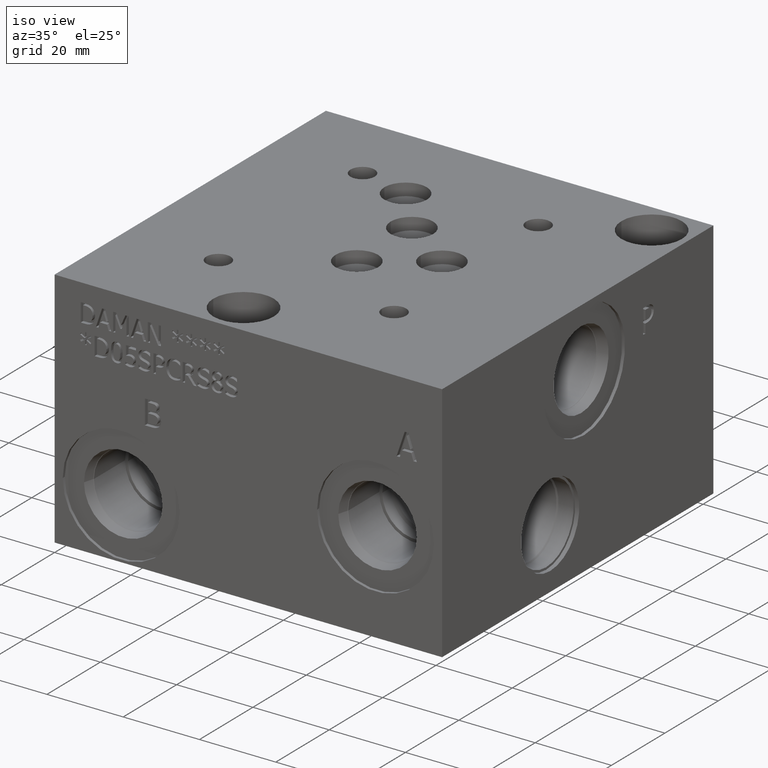
[diagram: clean part render]
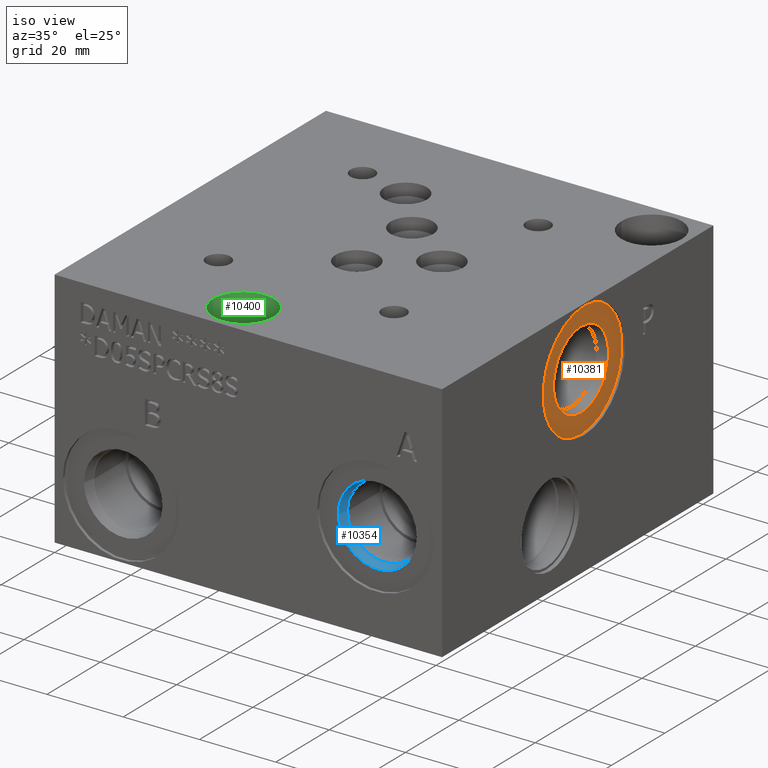
[diagram: same view with three faces highlighted in distinct colors, each labeled with its STEP entity id]
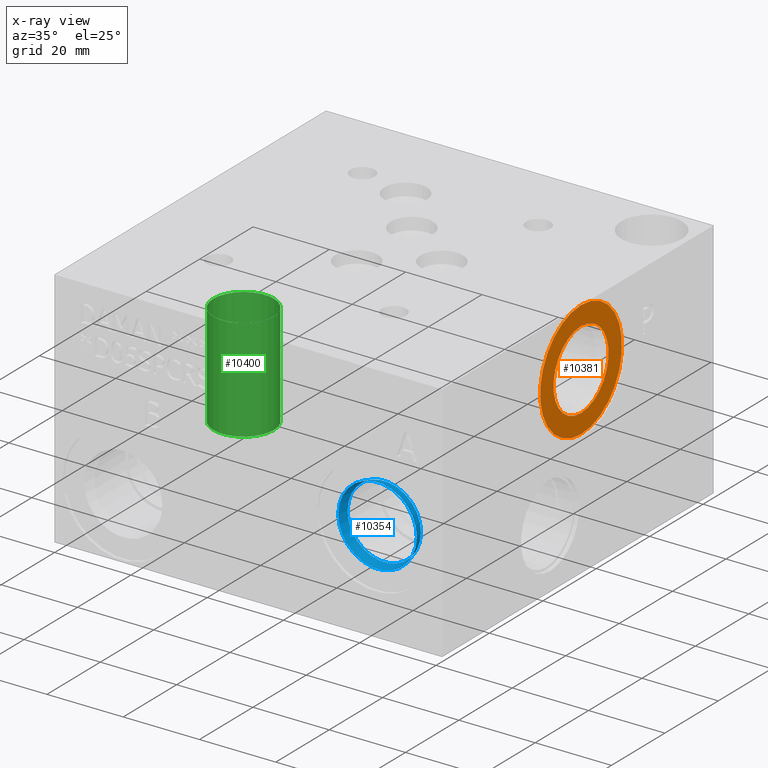
[diagram: x-ray of the same camera — body ghosted, the three highlighted faces saturated]
A machine part, iso view with three faces highlighted in distinct colors.
The next image is the same camera in x-ray (body ghosted, the three faces saturated) — at least one of them is partly hidden behind the body in this view.
Their STEP definitions:

[orange] entity #10381 — the highlighted planar face has unit normal (-1, 0, 0).
#200=CIRCLE('',#10872,15.3162);
#201=CIRCLE('',#10873,15.3162);
#202=CIRCLE('',#10875,10.2997);
#203=CIRCLE('',#10876,10.2997);
#334=FACE_BOUND('',#1718,.T.);
#634=PLANE('',#10874);
#1132=FACE_OUTER_BOUND('',#1717,.T.);
#1717=EDGE_LOOP('',(#9045,#9046));
#1718=EDGE_LOOP('',(#9047,#9048));
#4885=VERTEX_POINT('',#17860);
#4886=VERTEX_POINT('',#17862);
#4887=VERTEX_POINT('',#17866);
#4888=VERTEX_POINT('',#17867);
#6303=EDGE_CURVE('',#4885,#4886,#200,.T.);
#6304=EDGE_CURVE('',#4886,#4885,#201,.T.);
#6305=EDGE_CURVE('',#4887,#4888,#202,.T.);
#6306=EDGE_CURVE('',#4888,#4887,#203,.T.);
#9045=ORIENTED_EDGE('',*,*,#6304,.F.);
#9046=ORIENTED_EDGE('',*,*,#6303,.F.);
#9047=ORIENTED_EDGE('',*,*,#6305,.T.);
#9048=ORIENTED_EDGE('',*,*,#6306,.T.);
#10381=ADVANCED_FACE('',(#1132,#334),#634,.F.);
#10872=AXIS2_PLACEMENT_3D('',#17863,#12758,#12759);
#10873=AXIS2_PLACEMENT_3D('',#17864,#12760,#12761);
#10874=AXIS2_PLACEMENT_3D('',#17865,#12762,#12763);
#10875=AXIS2_PLACEMENT_3D('',#17868,#12764,#12765);
#10876=AXIS2_PLACEMENT_3D('',#17869,#12766,#12767);
#12758=DIRECTION('center_axis',(-1.,0.,0.));
#12759=DIRECTION('ref_axis',(0.,0.,1.));
#12760=DIRECTION('center_axis',(-1.,0.,0.));
#12761=DIRECTION('ref_axis',(0.,0.,1.));
#12762=DIRECTION('center_axis',(-1.,0.,0.));
#12763=DIRECTION('ref_axis',(0.,0.,1.));
#12764=DIRECTION('center_axis',(-1.,0.,0.));
#12765=DIRECTION('ref_axis',(0.,0.,1.));
#12766=DIRECTION('center_axis',(-1.,0.,0.));
#12767=DIRECTION('ref_axis',(0.,0.,1.));
#17860=CARTESIAN_POINT('',(100.8126,53.1622,62.9412));
#17862=CARTESIAN_POINT('',(100.8126,53.1622,32.3088));
#17863=CARTESIAN_POINT('Origin',(100.8126,53.1622,47.625));
#17864=CARTESIAN_POINT('Origin',(100.8126,53.1622,47.625));
#17865=CARTESIAN_POINT('Origin',(100.8126,53.1622,37.3253));
#17866=CARTESIAN_POINT('',(100.8126,53.1622,37.3253));
#17867=CARTESIAN_POINT('',(100.8126,53.1622,57.9247));
#17868=CARTESIAN_POINT('Origin',(100.8126,53.1622,47.625));
#17869=CARTESIAN_POINT('Origin',(100.8126,53.1622,47.625));

[blue] entity #10354 — the highlighted conical surface has half-angle 15.05 deg.
#21=CONICAL_SURFACE('',#10806,9.96315000000001,0.262678410964684);
#159=CIRCLE('',#10804,10.2997);
#160=CIRCLE('',#10805,10.2997);
#161=CIRCLE('',#10807,9.6266);
#162=CIRCLE('',#10808,9.6266);
#1105=FACE_OUTER_BOUND('',#1687,.T.);
#1687=EDGE_LOOP('',(#8911,#8912,#8913,#8914,#8915,#8916));
#2666=LINE('',#17731,#3605);
#3605=VECTOR('',#12604,9.96315000000001);
#4841=VERTEX_POINT('',#17725);
#4842=VERTEX_POINT('',#17726);
#4843=VERTEX_POINT('',#17730);
#4844=VERTEX_POINT('',#17732);
#6238=EDGE_CURVE('',#4841,#4842,#159,.T.);
#6239=EDGE_CURVE('',#4842,#4841,#160,.T.);
#6240=EDGE_CURVE('',#4842,#4843,#2666,.T.);
#6241=EDGE_CURVE('',#4843,#4844,#161,.T.);
#6242=EDGE_CURVE('',#4844,#4843,#162,.T.);
#8911=ORIENTED_EDGE('',*,*,#6238,.F.);
#8912=ORIENTED_EDGE('',*,*,#6239,.F.);
#8913=ORIENTED_EDGE('',*,*,#6240,.T.);
#8914=ORIENTED_EDGE('',*,*,#6241,.T.);
#8915=ORIENTED_EDGE('',*,*,#6242,.T.);
#8916=ORIENTED_EDGE('',*,*,#6240,.F.);
#10354=ADVANCED_FACE('',(#1105),#21,.F.);
#10804=AXIS2_PLACEMENT_3D('',#17727,#12598,#12599);
#10805=AXIS2_PLACEMENT_3D('',#17728,#12600,#12601);
#10806=AXIS2_PLACEMENT_3D('',#17729,#12602,#12603);
#10807=AXIS2_PLACEMENT_3D('',#17733,#12605,#12606);
#10808=AXIS2_PLACEMENT_3D('',#17734,#12607,#12608);
#12598=DIRECTION('center_axis',(0.,1.,0.));
#12599=DIRECTION('ref_axis',(1.,0.,0.));
#12600=DIRECTION('center_axis',(0.,1.,0.));
#12601=DIRECTION('ref_axis',(1.,0.,0.));
#12602=DIRECTION('center_axis',(0.,-1.,0.));
#12603=DIRECTION('ref_axis',(1.,0.,0.));
#12604=DIRECTION('',(0.259668016178306,0.965697945205447,-3.18001604853706E-17));
#12605=DIRECTION('center_axis',(0.,1.,0.));
#12606=DIRECTION('ref_axis',(1.,0.,0.));
#12607=DIRECTION('center_axis',(0.,1.,0.));
#12608=DIRECTION('ref_axis',(1.,0.,0.));
#17725=CARTESIAN_POINT('',(94.4245,0.7874,26.2128));
#17726=CARTESIAN_POINT('',(73.8251,0.7874,26.2128));
#17727=CARTESIAN_POINT('Origin',(84.1248,0.7874,26.2128));
#17728=CARTESIAN_POINT('Origin',(84.1248,0.7874,26.2128));
#17729=CARTESIAN_POINT('Origin',(84.1248,2.03901985,26.2128));
#17730=CARTESIAN_POINT('',(74.4982,3.2906397,26.2128));
#17731=CARTESIAN_POINT('',(74.16165,2.03901985,26.2128));
#17732=CARTESIAN_POINT('',(93.7514,3.2906397,26.2128));
#17733=CARTESIAN_POINT('Origin',(84.1248,3.2906397,26.2128));
#17734=CARTESIAN_POINT('Origin',(84.1248,3.2906397,26.2128));

[green] entity #10400 — the highlighted cylindrical surface (bore or boss wall) has radius 7.9375 mm, axis along (0, 0, 1).
#82=CYLINDRICAL_SURFACE('',#10927,7.9375);
#233=CIRCLE('',#10924,7.9375);
#234=CIRCLE('',#10925,7.9375);
#236=CIRCLE('',#10928,7.9375);
#237=CIRCLE('',#10929,7.9375);
#1151=FACE_OUTER_BOUND('',#1741,.T.);
#1741=EDGE_LOOP('',(#9137,#9138,#9139,#9140,#9141,#9142));
#2704=LINE('',#17972,#3643);
#3643=VECTOR('',#12888,7.9375);
#4919=VERTEX_POINT('',#17961);
#4920=VERTEX_POINT('',#17962);
#4922=VERTEX_POINT('',#17968);
#4923=VERTEX_POINT('',#17969);
#6350=EDGE_CURVE('',#4919,#4920,#233,.T.);
#6351=EDGE_CURVE('',#4920,#4919,#234,.T.);
#6353=EDGE_CURVE('',#4922,#4923,#236,.T.);
#6354=EDGE_CURVE('',#4923,#4922,#237,.T.);
#6355=EDGE_CURVE('',#4923,#4920,#2704,.T.);
#9137=ORIENTED_EDGE('',*,*,#6353,.F.);
#9138=ORIENTED_EDGE('',*,*,#6354,.F.);
#9139=ORIENTED_EDGE('',*,*,#6355,.T.);
#9140=ORIENTED_EDGE('',*,*,#6350,.F.);
#9141=ORIENTED_EDGE('',*,*,#6351,.F.);
#9142=ORIENTED_EDGE('',*,*,#6355,.F.);
#10400=ADVANCED_FACE('',(#1151),#82,.F.);
#10924=AXIS2_PLACEMENT_3D('',#17963,#12876,#12877);
#10925=AXIS2_PLACEMENT_3D('',#17964,#12878,#12879);
#10927=AXIS2_PLACEMENT_3D('',#17967,#12882,#12883);
#10928=AXIS2_PLACEMENT_3D('',#17970,#12884,#12885);
#10929=AXIS2_PLACEMENT_3D('',#17971,#12886,#12887);
#12876=DIRECTION('center_axis',(0.,0.,1.));
#12877=DIRECTION('ref_axis',(1.,0.,0.));
#12878=DIRECTION('center_axis',(0.,0.,1.));
#12879=DIRECTION('ref_axis',(1.,0.,0.));
#12882=DIRECTION('center_axis',(0.,0.,1.));
#12883=DIRECTION('ref_axis',(1.,0.,0.));
#12884=DIRECTION('center_axis',(0.,0.,-1.));
#12885=DIRECTION('ref_axis',(1.,0.,0.));
#12886=DIRECTION('center_axis',(0.,0.,-1.));
#12887=DIRECTION('ref_axis',(1.,0.,0.));
#12888=DIRECTION('',(0.,0.,-1.));
#17961=CARTESIAN_POINT('',(50.8127,9.525,36.576));
#17962=CARTESIAN_POINT('',(34.9377,9.525,36.576));
#17963=CARTESIAN_POINT('Origin',(42.8752,9.525,36.576));
#17964=CARTESIAN_POINT('Origin',(42.8752,9.525,36.576));
#17967=CARTESIAN_POINT('Origin',(42.8752,9.525,50.038));
#17968=CARTESIAN_POINT('',(50.8127,9.525,63.5));
#17969=CARTESIAN_POINT('',(34.9377,9.525,63.5));
#17970=CARTESIAN_POINT('Origin',(42.8752,9.525,63.5));
#17971=CARTESIAN_POINT('Origin',(42.8752,9.525,63.5));
#17972=CARTESIAN_POINT('',(34.9377,9.525,50.038));